MODEL slx_16a970e682c1
KIND model
CONFIG AbsTol = auto
CONFIG EnableMultiTasking = off
CONFIG FixedStep = auto
CONFIG MaxStep = auto
CONFIG MinStep = auto
CONFIG RelTol = 1e-3
CONFIG SampleTimeConstraint = Unconstrained
CONFIG SolverName = VariableStepAuto
CONFIG StartTime = 0.0
CONFIG StopTime = 10
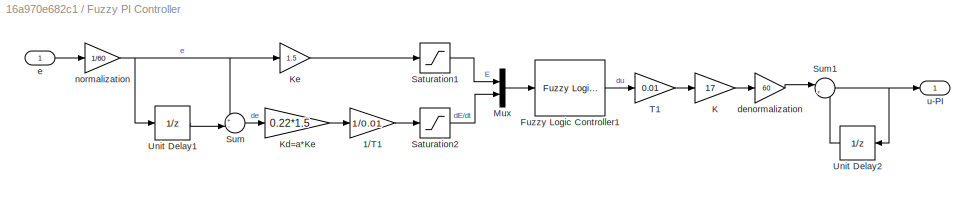
BLOCK [SubSystem] Fuzzy PI Controller
  Ports = [1, 1]
  RequestExecContextInheritance = off
BLOCK [Gain] Fuzzy PI Controller/1//T1
  Gain = 1/0.01
BLOCK [Reference] Fuzzy PI Controller/Fuzzy Logic Controller1  REF=fuzblock/Fuzzy Logic   (lib defined in mdl_858b3b3e7478)
Controller
  Ports = [1, 1]
  SourceBlock = fuzblock/Fuzzy Logic \nController
  SourceProductBaseCode = FL
  SourceType = Fuzzy Inference System
BLOCK [Gain] Fuzzy PI Controller/K
  Gain = 17
BLOCK [Gain] Fuzzy PI Controller/Kd=a*Ke
  Gain = 0.22*1.5
BLOCK [Gain] Fuzzy PI Controller/Ke
  Gain = 1.5
BLOCK [Mux] Fuzzy PI Controller/Mux
  DisplayOption = bar
  Inputs = 2
  Ports = [2, 1]
BLOCK [Saturate] Fuzzy PI Controller/Saturation1
  LowerLimit = -1
  UpperLimit = 1
BLOCK [Saturate] Fuzzy PI Controller/Saturation2
  LowerLimit = -1
  UpperLimit = 1
BLOCK [Sum] Fuzzy PI Controller/Sum
  Inputs = +-|
  Ports = [2, 1]
BLOCK [Sum] Fuzzy PI Controller/Sum1
  Inputs = |++
  Ports = [2, 1]
BLOCK [Gain] Fuzzy PI Controller/T1
  Gain = 0.01
BLOCK [UnitDelay] Fuzzy PI Controller/Unit Delay1
  HasFrameUpgradeWarning = on
  SampleTime = -1
BLOCK [UnitDelay] Fuzzy PI Controller/Unit Delay2
  HasFrameUpgradeWarning = on
  SampleTime = -1
BLOCK [Gain] Fuzzy PI Controller/denormalization
  Gain = 60
BLOCK [Inport] Fuzzy PI Controller/e
BLOCK [Gain] Fuzzy PI Controller/normalization
  Gain = 1/60
BLOCK [Outport] Fuzzy PI Controller/u-PI
BLOCK [Mux] Mux
  DisplayOption = bar
  Inputs = 3
  Ports = [3, 1]
BLOCK [Reference] PID Controller  REF=pid_lib/PID Controller
  Ports = [1, 1]
  SourceBlock = pid_lib/PID Controller
  SourceProductBaseCode = SL
  SourceType = PID 1dof
BLOCK [Scope] Scope
  Floating = off
  NumInputPorts = 1
  Ports = [1]
  ScopeSpecificationString = Simulink.scopes.TimeScopeBlockCfg('CurrentConfiguration', extmgr.ConfigurationSet(extmgr.Configuration('Core','General UI',true,'DisplayFullSourceName',true),extmgr.Configuration('Core','Source UI',true),extmgr.Configuration('Sources','WiredSimulink',true),extmgr.Configuration('Visuals','Time Domain',true,'TimeAxisLabels','All','SerializedDisplays',{struct('MinYLimReal','-7.96625','MaxYLimReal','7...<+2006ch>
BLOCK [Step] Step
  After = 60
  SampleTime = 0.01
  Time = 0
BLOCK [Sum] Sum
  Inputs = |+-
  Ports = [2, 1]
BLOCK [Sum] Sum1
  Inputs = |+-
  Ports = [2, 1]
BLOCK [TransferFcn] System
  Denominator = [1 10 9]
  Numerator = [10]
BLOCK [TransferFcn] System1
  Denominator = [1 10 9]
  Numerator = [10]
BLOCK [ZeroOrderHold] Zero-Order Hold
  SampleTime = 0.01
BLOCK [ZeroOrderHold] Zero-Order Hold1
  SampleTime = -1
ANNOTATION (root): Computational Intelligence Task 1 Anastasios Gramemnos 9212 <email> March 2022
ANNOTATION (root): control input
ANNOTATION (root): setpoint
LINE Fuzzy PI Controller/1//T1:1 -> Fuzzy PI Controller/Saturation2:1
LINE Fuzzy PI Controller/Fuzzy Logic Controller1:1 -> Fuzzy PI Controller/T1:1
LINE Fuzzy PI Controller/K:1 -> Fuzzy PI Controller/denormalization:1
LINE Fuzzy PI Controller/Kd=a*Ke:1 -> Fuzzy PI Controller/1//T1:1
LINE Fuzzy PI Controller/Ke:1 -> Fuzzy PI Controller/Saturation1:1
LINE Fuzzy PI Controller/Mux:1 -> Fuzzy PI Controller/Fuzzy Logic Controller1:1
LINE Fuzzy PI Controller/Saturation1:1 -> Fuzzy PI Controller/Mux:1
LINE Fuzzy PI Controller/Saturation2:1 -> Fuzzy PI Controller/Mux:2
NET Fuzzy PI Controller/Sum1:1 -> Fuzzy PI Controller/Unit Delay2:1, Fuzzy PI Controller/u-PI:1
LINE Fuzzy PI Controller/Sum:1 -> Fuzzy PI Controller/Kd=a*Ke:1
LINE Fuzzy PI Controller/T1:1 -> Fuzzy PI Controller/K:1
LINE Fuzzy PI Controller/Unit Delay1:1 -> Fuzzy PI Controller/Sum:2
LINE Fuzzy PI Controller/Unit Delay2:1 -> Fuzzy PI Controller/Sum1:2
LINE Fuzzy PI Controller/denormalization:1 -> Fuzzy PI Controller/Sum1:1
LINE Fuzzy PI Controller/e:1 -> Fuzzy PI Controller/normalization:1
NET Fuzzy PI Controller/normalization:1 -> Fuzzy PI Controller/Ke:1, Fuzzy PI Controller/Sum:1, Fuzzy PI Controller/Unit Delay1:1
LINE Fuzzy PI Controller:1 -> Zero-Order Hold:1
LINE Mux:1 -> Scope:1
LINE PID Controller:1 -> Zero-Order Hold1:1
NET Step:1 -> Mux:1, Sum1:1, Sum:1
LINE Sum1:1 -> PID Controller:1
LINE Sum:1 -> Fuzzy PI Controller:1
NET System1:1 -> Mux:3, Sum1:2
NET System:1 -> Mux:2, Sum:2
LINE Zero-Order Hold1:1 -> System1:1
LINE Zero-Order Hold:1 -> System:1
note: NET lines group one-source signal fan-out (src -> all destinations, sorted); 1:1 wires keep LINE
